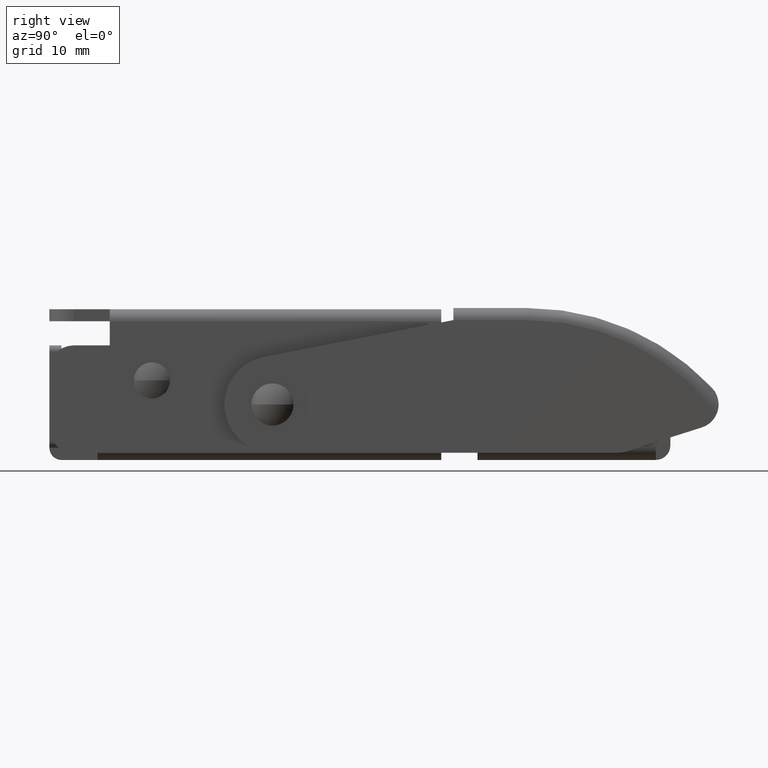
[diagram: clean part render]
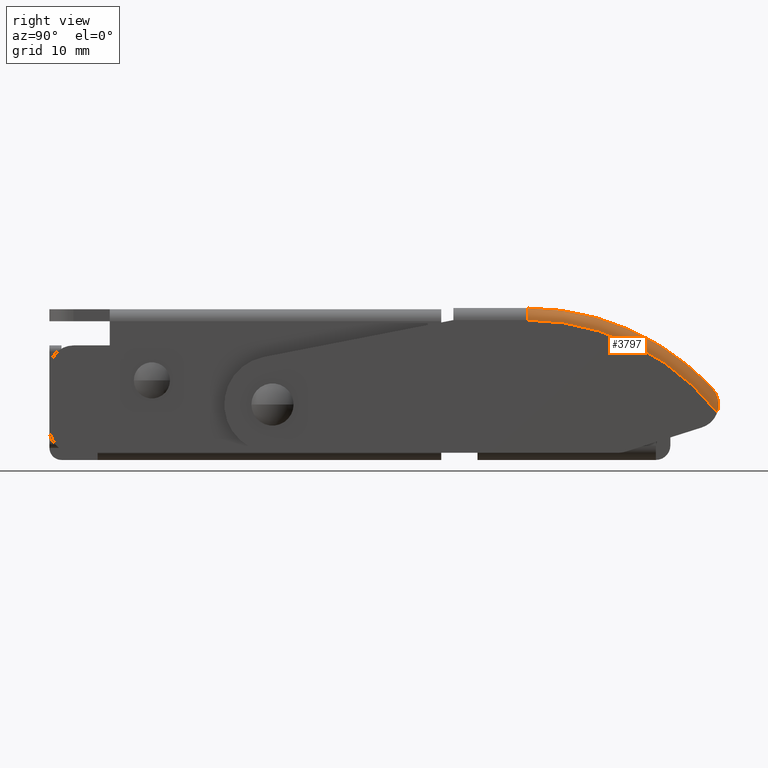
[diagram: same view with one face highlighted and labeled with its STEP entity id]
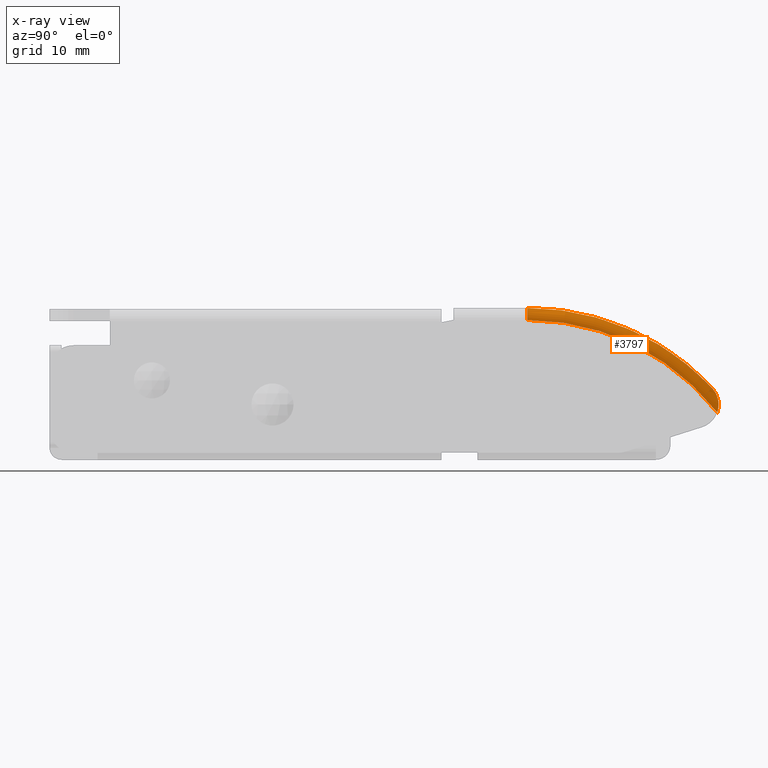
[diagram: x-ray of the same camera — body ghosted, the highlighted face saturated]
A machine part, right view. The second image highlights one B-rep face of the part: STEP entity #3797.
The next image is the same camera in x-ray: the body ghosted, the highlighted face saturated — about 0% of this face is hidden behind the body in this view.
In plain terms, the highlighted toroidal blend (fillet) surface has major radius 20 mm and minor (blend) radius 1 mm.
Its self-contained STEP definition (entity closure, byte-faithful):
#98 = CARTESIAN_POINT ( 'NONE',  ( 8.900000000000000400, 36.45856910111063300, 1.368421052631581200 ) ) ;
#151 = CARTESIAN_POINT ( 'NONE',  ( 9.346042232222478300, 36.83802213949971400, 0.8067541774542552600 ) ) ;
#241 = ORIENTED_EDGE ( 'NONE', *, *, #599, .F. ) ;
#308 = DIRECTION ( 'NONE',  ( 0.0000000000000000000, 0.0000000000000000000, -1.000000000000000000 ) ) ;
#523 = CARTESIAN_POINT ( 'NONE',  ( 9.899999999999998600, 21.14359353944897900, 7.000000000000005300 ) ) ;
#568 = CARTESIAN_POINT ( 'NONE',  ( 8.899999999999998600, 21.14359353944897900, 7.000000000000005300 ) ) ;
#599 = EDGE_CURVE ( 'NONE', #3024, #6668, #2424, .T. ) ;
#739 = EDGE_CURVE ( 'NONE', #6323, #6999, #3865, .T. ) ;
#763 = CARTESIAN_POINT ( 'NONE',  ( 9.641391429447807600, 36.98588801514071600, 0.2973806260215873200 ) ) ;
#1184 = DIRECTION ( 'NONE',  ( 0.0000000000000000000, 0.0000000000000000000, 1.000000000000000000 ) ) ;
#1369 = CARTESIAN_POINT ( 'NONE',  ( 9.824193397523330900, 36.99454449719631600, -0.1763228826596565400 ) ) ;
#1590 = B_SPLINE_CURVE_WITH_KNOTS ( 'NONE', 3,
 ( #4436, #6254, #3858, #151, #4462, #763, #5087, #1369, #5710, #2003, #6314, #2646 ),
 .UNSPECIFIED., .F., .F.,
 ( 4, 2, 2, 2, 2, 4 ),
 ( -9.403259237234443100E-006, 0.0006009653090609748000, 0.001211333877359184200, 0.001821702445657393700, 0.002126886729806499200, 0.002432071013955605000 ),
 .UNSPECIFIED. ) ;
#1860 = ORIENTED_EDGE ( 'NONE', *, *, #6696, .T. ) ;
#2003 = CARTESIAN_POINT ( 'NONE',  ( 9.888943610718588000, 36.94647318270909200, -0.4702026926347598300 ) ) ;
#2254 = CIRCLE ( 'NONE', #7013, 1.000000000000000000 ) ;
#2263 = CARTESIAN_POINT ( 'NONE',  ( 8.899999999999998600, 21.14359353944897500, -13.00000000000000000 ) ) ;
#2392 = ORIENTED_EDGE ( 'NONE', *, *, #7077, .F. ) ;
#2424 = CIRCLE ( 'NONE', #4563, 20.00000000000000400 ) ;
#2494 = DIRECTION ( 'NONE',  ( 1.000000000000000000, 0.0000000000000000000, 0.0000000000000000000 ) ) ;
#2646 = CARTESIAN_POINT ( 'NONE',  ( 9.899999999999998600, 36.88638299840231800, -0.6644991973950447100 ) ) ;
#3024 = VERTEX_POINT ( 'NONE', #3135 ) ;
#3135 = CARTESIAN_POINT ( 'NONE',  ( 9.899999999999998600, 36.88638299840231800, -0.6644991973950447100 ) ) ;
#3517 = DIRECTION ( 'NONE',  ( 0.0000000000000000000, 0.0000000000000000000, -1.000000000000000000 ) ) ;
#3797 = ADVANCED_FACE ( 'NONE', ( #5640 ), #6754, .T. ) ;
#3822 = EDGE_LOOP ( 'NONE', ( #5054, #1860, #241, #2392 ) ) ;
#3858 = CARTESIAN_POINT ( 'NONE',  ( 9.127787777483925800, 36.67459409909213300, 1.106757557650626100 ) ) ;
#3865 = CIRCLE ( 'NONE', #7430, 21.00000000000000400 ) ;
#4079 = CARTESIAN_POINT ( 'NONE',  ( 8.899999999999998600, 21.14359353944897500, -13.00000000000000000 ) ) ;
#4436 = CARTESIAN_POINT ( 'NONE',  ( 8.900000000000000400, 36.45856910111063300, 1.368421052631581200 ) ) ;
#4462 = CARTESIAN_POINT ( 'NONE',  ( 9.450008697217164400, 36.90125785037597000, 0.6460689063840903100 ) ) ;
#4563 = AXIS2_PLACEMENT_3D ( 'NONE', #6793, #2494, #6161 ) ;
#4901 = DIRECTION ( 'NONE',  ( 0.0000000000000000000, 1.000000000000000000, 0.0000000000000000000 ) ) ;
#5054 = ORIENTED_EDGE ( 'NONE', *, *, #739, .F. ) ;
#5087 = CARTESIAN_POINT ( 'NONE',  ( 9.727012432057366100, 37.00611191684804200, 0.1127165385477283800 ) ) ;
#5640 = FACE_OUTER_BOUND ( 'NONE', #3822, .T. ) ;
#5710 = CARTESIAN_POINT ( 'NONE',  ( 9.851288849195022100, 36.98345982125940900, -0.2752009458855066400 ) ) ;
#5895 = DIRECTION ( 'NONE',  ( -1.000000000000000000, -0.0000000000000000000, -0.0000000000000000000 ) ) ;
#6161 = DIRECTION ( 'NONE',  ( 0.0000000000000000000, 0.0000000000000000000, -1.000000000000000000 ) ) ;
#6254 = CARTESIAN_POINT ( 'NONE',  ( 9.013548903974689000, 36.57407951510352000, 1.245301110576835700 ) ) ;
#6314 = CARTESIAN_POINT ( 'NONE',  ( 9.900000000000002100, 36.92060069507044100, -0.5673618622526279700 ) ) ;
#6323 = VERTEX_POINT ( 'NONE', #6867 ) ;
#6568 = DIRECTION ( 'NONE',  ( 1.000000000000000000, 0.0000000000000000000, 0.0000000000000000000 ) ) ;
#6668 = VERTEX_POINT ( 'NONE', #523 ) ;
#6696 = EDGE_CURVE ( 'NONE', #6323, #6668, #2254, .T. ) ;
#6754 = TOROIDAL_SURFACE ( 'NONE', #7706, 20.00000000000000400, 1.000000000000000000 ) ;
#6793 = CARTESIAN_POINT ( 'NONE',  ( 9.899999999999998600, 21.14359353944897500, -13.00000000000000000 ) ) ;
#6867 = CARTESIAN_POINT ( 'NONE',  ( 8.899999999999998600, 21.14359353944897900, 8.000000000000005300 ) ) ;
#6999 = VERTEX_POINT ( 'NONE', #98 ) ;
#7013 = AXIS2_PLACEMENT_3D ( 'NONE', #568, #4901, #1184 ) ;
#7077 = EDGE_CURVE ( 'NONE', #6999, #3024, #1590, .T. ) ;
#7430 = AXIS2_PLACEMENT_3D ( 'NONE', #4079, #5895, #308 ) ;
#7706 = AXIS2_PLACEMENT_3D ( 'NONE', #2263, #6568, #3517 ) ;